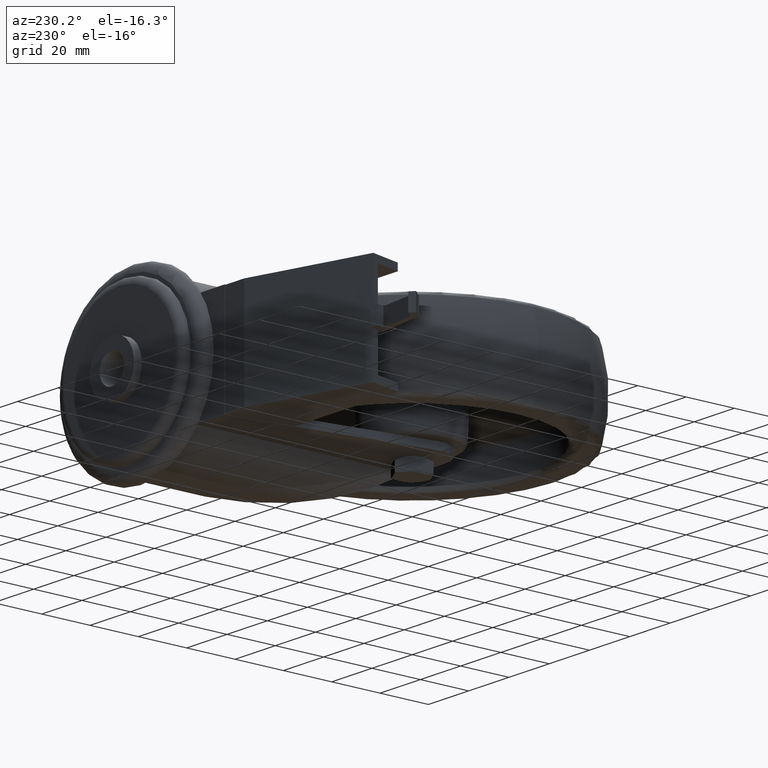
[diagram: clean part render]
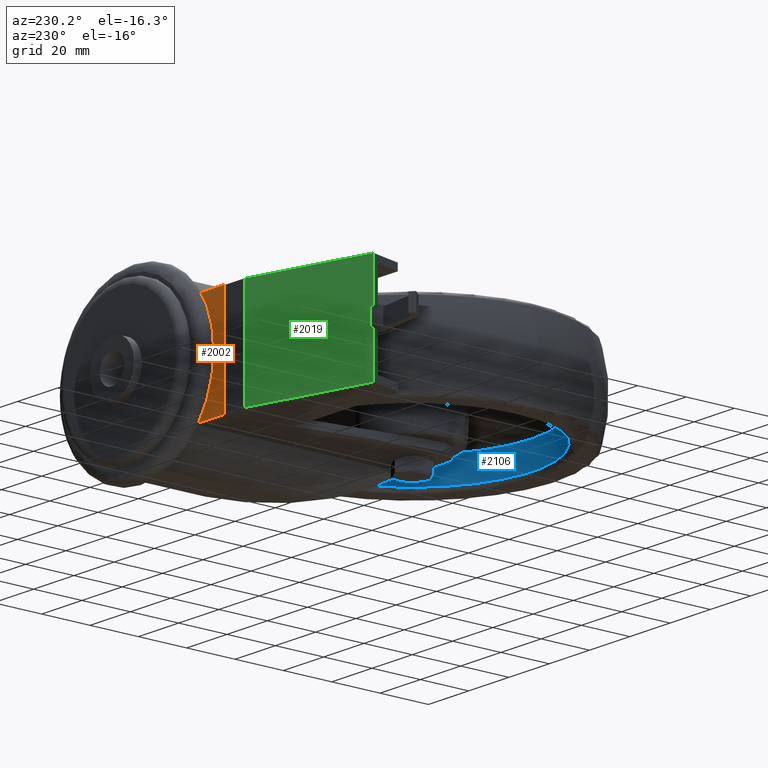
[diagram: same view with three faces highlighted in distinct colors, each labeled with its STEP entity id]
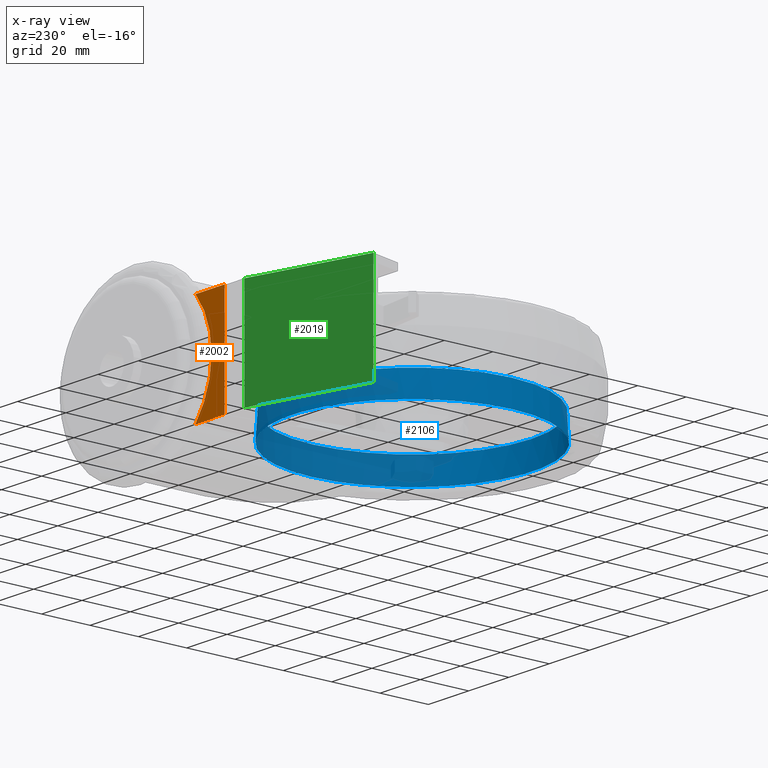
[diagram: x-ray of the same camera — body ghosted, the three highlighted faces saturated]
A machine part, auxiliary view with three faces highlighted in distinct colors.
The next image is the same camera in x-ray (body ghosted, the three faces saturated) — at least one of them is partly hidden behind the body in this view.
Their STEP definitions:

[orange] entity #2002 — the highlighted planar face has unit normal (0, -1, 0).
#182=PLANE('',#2271);
#254=FACE_OUTER_BOUND('',#385,.T.);
#385=EDGE_LOOP('',(#1474,#1475,#1476,#1477));
#530=CIRCLE('',#2269,33.);
#674=LINE('',#3274,#807);
#675=LINE('',#3275,#808);
#676=LINE('',#3276,#809);
#807=VECTOR('',#2605,1000.);
#808=VECTOR('',#2606,1000.);
#809=VECTOR('',#2607,1000.);
#944=VERTEX_POINT('',#3265);
#945=VERTEX_POINT('',#3267);
#946=VERTEX_POINT('',#3272);
#947=VERTEX_POINT('',#3273);
#1146=EDGE_CURVE('',#945,#944,#530,.T.);
#1149=EDGE_CURVE('',#946,#947,#674,.T.);
#1150=EDGE_CURVE('',#945,#946,#675,.T.);
#1151=EDGE_CURVE('',#944,#947,#676,.T.);
#1474=ORIENTED_EDGE('',*,*,#1149,.F.);
#1475=ORIENTED_EDGE('',*,*,#1150,.F.);
#1476=ORIENTED_EDGE('',*,*,#1146,.T.);
#1477=ORIENTED_EDGE('',*,*,#1151,.T.);
#2002=ADVANCED_FACE('',(#254),#182,.F.);
#2269=AXIS2_PLACEMENT_3D('',#3268,#2598,#2599);
#2271=AXIS2_PLACEMENT_3D('',#3271,#2603,#2604);
#2598=DIRECTION('center_axis',(0.,-1.,0.));
#2599=DIRECTION('ref_axis',(0.,0.,-1.));
#2603=DIRECTION('center_axis',(0.,-1.,0.));
#2604=DIRECTION('ref_axis',(0.,0.,-1.));
#2605=DIRECTION('',(0.,0.,-1.));
#2606=DIRECTION('',(-1.,0.,0.));
#2607=DIRECTION('',(-1.,0.,0.));
#3265=CARTESIAN_POINT('',(11.9650244657599,79.7,-21.5));
#3267=CARTESIAN_POINT('',(11.9650244657599,79.7,21.5));
#3268=CARTESIAN_POINT('Origin',(37.,79.7,0.));
#3271=CARTESIAN_POINT('Origin',(37.,79.7,21.5));
#3272=CARTESIAN_POINT('',(-2.5,79.7,21.5));
#3273=CARTESIAN_POINT('',(-2.5,79.7,-21.5));
#3274=CARTESIAN_POINT('',(-2.5,79.7,21.5));
#3275=CARTESIAN_POINT('',(37.,79.7,21.5));
#3276=CARTESIAN_POINT('',(37.,79.7,-21.5));

[blue] entity #2106 — the highlighted conical surface has half-angle 3 deg.
#100=CONICAL_SURFACE('',#2454,49.9006700639206,0.0523598775598294);
#358=FACE_OUTER_BOUND('',#507,.T.);
#507=EDGE_LOOP('',(#1927,#1928,#1929,#1930,#1931,#1932));
#606=CIRCLE('',#2452,49.9006700639206);
#607=CIRCLE('',#2453,49.9006700639206);
#608=CIRCLE('',#2455,49.3445434288459);
#609=CIRCLE('',#2456,49.3445434288459);
#757=LINE('',#3810,#890);
#890=VECTOR('',#3058,49.9006700639206);
#1068=VERTEX_POINT('',#3800);
#1069=VERTEX_POINT('',#3802);
#1070=VERTEX_POINT('',#3806);
#1071=VERTEX_POINT('',#3807);
#1355=EDGE_CURVE('',#1068,#1069,#606,.T.);
#1356=EDGE_CURVE('',#1069,#1068,#607,.T.);
#1357=EDGE_CURVE('',#1070,#1071,#608,.T.);
#1358=EDGE_CURVE('',#1071,#1070,#609,.T.);
#1359=EDGE_CURVE('',#1070,#1069,#757,.T.);
#1927=ORIENTED_EDGE('',*,*,#1357,.T.);
#1928=ORIENTED_EDGE('',*,*,#1358,.T.);
#1929=ORIENTED_EDGE('',*,*,#1359,.T.);
#1930=ORIENTED_EDGE('',*,*,#1355,.F.);
#1931=ORIENTED_EDGE('',*,*,#1356,.F.);
#1932=ORIENTED_EDGE('',*,*,#1359,.F.);
#2106=ADVANCED_FACE('',(#358),#100,.F.);
#2452=AXIS2_PLACEMENT_3D('',#3803,#3048,#3049);
#2453=AXIS2_PLACEMENT_3D('',#3804,#3050,#3051);
#2454=AXIS2_PLACEMENT_3D('',#3805,#3052,#3053);
#2455=AXIS2_PLACEMENT_3D('',#3808,#3054,#3055);
#2456=AXIS2_PLACEMENT_3D('',#3809,#3056,#3057);
#3048=DIRECTION('center_axis',(0.,0.,1.));
#3049=DIRECTION('ref_axis',(1.,0.,0.));
#3050=DIRECTION('center_axis',(0.,0.,1.));
#3051=DIRECTION('ref_axis',(1.,0.,0.));
#3052=DIRECTION('center_axis',(0.,0.,-1.));
#3053=DIRECTION('ref_axis',(-1.,0.,0.));
#3054=DIRECTION('center_axis',(0.,0.,1.));
#3055=DIRECTION('ref_axis',(1.,0.,0.));
#3056=DIRECTION('center_axis',(0.,0.,1.));
#3057=DIRECTION('ref_axis',(1.,0.,0.));
#3058=DIRECTION('',(0.0523359562429433,-6.40930612932365E-18,-0.998629534754574));
#3800=CARTESIAN_POINT('',(-49.9006700639206,-6.11106958690885E-15,-15.6046719124859));
#3802=CARTESIAN_POINT('',(49.9006700639206,0.,-15.6046719124859));
#3803=CARTESIAN_POINT('Origin',(0.,0.,-15.6046719124859));
#3804=CARTESIAN_POINT('Origin',(0.,0.,-15.6046719124859));
#3805=CARTESIAN_POINT('Origin',(0.,0.,-15.6046719124859));
#3806=CARTESIAN_POINT('',(49.3445434288459,0.,-4.99314357293913));
#3807=CARTESIAN_POINT('',(-49.3445434288459,-6.04296371655237E-15,-4.99314357293913));
#3808=CARTESIAN_POINT('Origin',(0.,0.,-4.99314357293913));
#3809=CARTESIAN_POINT('Origin',(0.,0.,-4.99314357293913));
#3810=CARTESIAN_POINT('',(49.9006700639206,-6.11106958690885E-15,-15.6046719124859));

[green] entity #2019 — the highlighted planar face has unit normal (0.2588, -0.9659, 0).
#192=PLANE('',#2302);
#271=FACE_OUTER_BOUND('',#409,.T.);
#409=EDGE_LOOP('',(#1548,#1549,#1550,#1551,#1552,#1553));
#629=LINE('',#3121,#762);
#687=LINE('',#3333,#820);
#688=LINE('',#3335,#821);
#689=LINE('',#3337,#822);
#690=LINE('',#3339,#823);
#691=LINE('',#3340,#824);
#762=VECTOR('',#2494,1000.);
#820=VECTOR('',#2680,1000.);
#821=VECTOR('',#2681,1000.);
#822=VECTOR('',#2682,1000.);
#823=VECTOR('',#2683,1000.);
#824=VECTOR('',#2684,1000.);
#897=VERTEX_POINT('',#3118);
#898=VERTEX_POINT('',#3120);
#962=VERTEX_POINT('',#3332);
#963=VERTEX_POINT('',#3334);
#964=VERTEX_POINT('',#3336);
#965=VERTEX_POINT('',#3338);
#1082=EDGE_CURVE('',#897,#898,#629,.T.);
#1176=EDGE_CURVE('',#962,#898,#687,.T.);
#1177=EDGE_CURVE('',#963,#897,#688,.T.);
#1178=EDGE_CURVE('',#964,#963,#689,.T.);
#1179=EDGE_CURVE('',#965,#964,#690,.T.);
#1180=EDGE_CURVE('',#965,#962,#691,.T.);
#1548=ORIENTED_EDGE('',*,*,#1176,.T.);
#1549=ORIENTED_EDGE('',*,*,#1082,.F.);
#1550=ORIENTED_EDGE('',*,*,#1177,.F.);
#1551=ORIENTED_EDGE('',*,*,#1178,.F.);
#1552=ORIENTED_EDGE('',*,*,#1179,.F.);
#1553=ORIENTED_EDGE('',*,*,#1180,.T.);
#2019=ADVANCED_FACE('',(#271),#192,.F.);
#2302=AXIS2_PLACEMENT_3D('',#3331,#2678,#2679);
#2494=DIRECTION('',(0.,0.,-1.));
#2678=DIRECTION('center_axis',(0.258819045102521,-0.965925826289068,0.));
#2679=DIRECTION('ref_axis',(0.965925826289068,0.258819045102521,0.));
#2680=DIRECTION('',(-0.965925826289068,-0.258819045102521,0.));
#2681=DIRECTION('',(0.,0.,-1.));
#2682=DIRECTION('',(0.,0.,-1.));
#2683=DIRECTION('',(-0.965925826289068,-0.258819045102521,0.));
#2684=DIRECTION('',(0.,0.,-1.));
#3118=CARTESIAN_POINT('',(-60.4833395016046,66.5,-3.5));
#3120=CARTESIAN_POINT('',(-60.4833395016046,66.5,-21.4));
#3121=CARTESIAN_POINT('',(-60.4833395016046,66.5,21.4));
#3331=CARTESIAN_POINT('Origin',(-11.9666790032092,79.5,21.4));
#3332=CARTESIAN_POINT('',(-11.9666790032092,79.5,-21.4));
#3333=CARTESIAN_POINT('',(-11.9666790032092,79.5,-21.4));
#3334=CARTESIAN_POINT('',(-60.4833395016046,66.5,3.5));
#3335=CARTESIAN_POINT('',(-60.4833395016046,66.5,21.4));
#3336=CARTESIAN_POINT('',(-60.4833395016046,66.5,21.4));
#3337=CARTESIAN_POINT('',(-60.4833395016046,66.5,21.4));
#3338=CARTESIAN_POINT('',(-11.9666790032092,79.5,21.4));
#3339=CARTESIAN_POINT('',(-11.9666790032092,79.5,21.4));
#3340=CARTESIAN_POINT('',(-11.9666790032092,79.5,21.4));